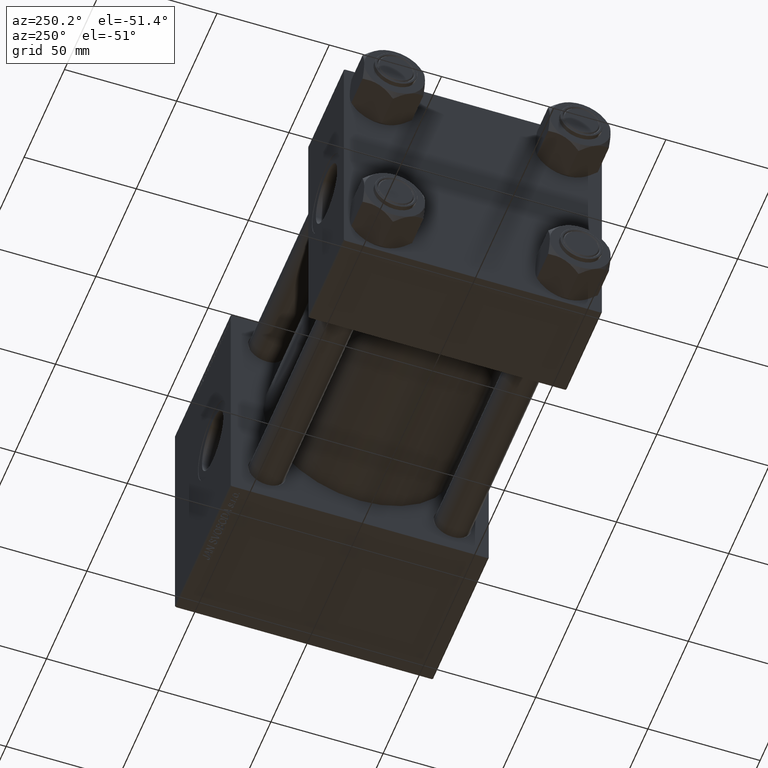
[diagram: clean part render]
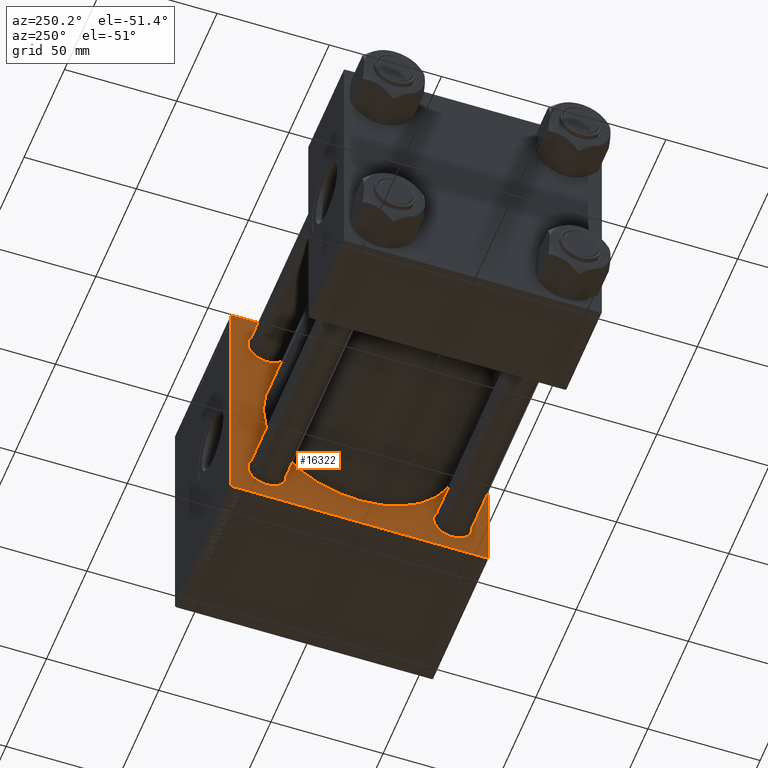
[diagram: same view with one face highlighted and labeled with its STEP entity id]
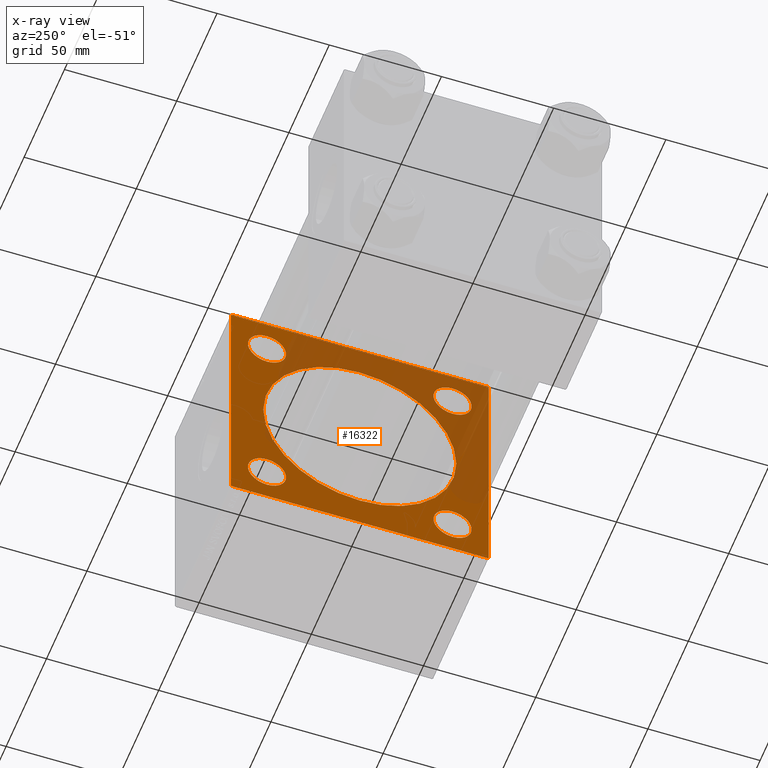
[diagram: x-ray of the same camera — body ghosted, the highlighted face saturated]
A machine part, auxiliary view. The second image highlights one B-rep face of the part: STEP entity #16322.
The next image is the same camera in x-ray: the body ghosted, the highlighted face saturated — about 40% of this face is hidden behind the body in this view.
In plain terms, the highlighted planar face has unit normal (-1, 0, 0).
Its self-contained STEP definition (entity closure, byte-faithful):
#446 = VERTEX_POINT ( 'NONE', #40073 ) ;
#920 = EDGE_LOOP ( 'NONE', ( #50719, #47070 ) ) ;
#1426 = LINE ( 'NONE', #8331, #13211 ) ;
#1679 = EDGE_CURVE ( 'NONE', #28467, #36475, #13775, .T. ) ;
#1708 = CIRCLE ( 'NONE', #30984, 8.500000000000007105 ) ;
#2763 = CARTESIAN_POINT ( 'NONE',  ( 140.0000000000000000, -57.49999999999999289, 57.00000000000004974 ) ) ;
#3466 = DIRECTION ( 'NONE',  ( 0.000000000000000000, 0.000000000000000000, -1.000000000000000000 ) ) ;
#3845 = CARTESIAN_POINT ( 'NONE',  ( 140.0000000000000000, -41.34999999999998721, 41.35000000000000853 ) ) ;
#3854 = CARTESIAN_POINT ( 'NONE',  ( 140.0000000000000000, -41.34999999999998721, 49.85000000000002274 ) ) ;
#3883 = CARTESIAN_POINT ( 'NONE',  ( 140.0000000000000000, 57.50000000000000000, 57.50000000000000711 ) ) ;
#4055 = DIRECTION ( 'NONE',  ( 0.000000000000000000, 0.000000000000000000, 1.000000000000000000 ) ) ;
#4323 = FACE_BOUND ( 'NONE', #23902, .T. ) ;
#4426 = CARTESIAN_POINT ( 'NONE',  ( 140.0000000000000000, -57.24999999999962341, 57.25000000000041211 ) ) ;
#5382 = CIRCLE ( 'NONE', #33002, 8.500000000000007105 ) ;
#6842 = EDGE_CURVE ( 'NONE', #41385, #12287, #40839, .T. ) ;
#6920 = AXIS2_PLACEMENT_3D ( 'NONE', #24215, #11902, #4055 ) ;
#6994 = EDGE_CURVE ( 'NONE', #47086, #31577, #1426, .T. ) ;
#7458 = PLANE ( 'NONE',  #22635 ) ;
#7527 = DIRECTION ( 'NONE',  ( 0.000000000000000000, 0.000000000000000000, 1.000000000000000000 ) ) ;
#7787 = DIRECTION ( 'NONE',  ( 0.000000000000000000, 0.7071067811865279218, -0.7071067811865671127 ) ) ;
#8328 = EDGE_CURVE ( 'NONE', #9391, #49280, #50914, .T. ) ;
#8331 = CARTESIAN_POINT ( 'NONE',  ( 140.0000000000000000, -57.25000000000117950, -57.24999999999879918 ) ) ;
#8431 = ORIENTED_EDGE ( 'NONE', *, *, #6994, .T. ) ;
#8612 = VERTEX_POINT ( 'NONE', #2763 ) ;
#8736 = ORIENTED_EDGE ( 'NONE', *, *, #14908, .T. ) ;
#9093 = DIRECTION ( 'NONE',  ( 1.000000000000000000, -0.000000000000000000, 0.000000000000000000 ) ) ;
#9208 = VECTOR ( 'NONE', #40292, 1000.000000000000000 ) ;
#9391 = VERTEX_POINT ( 'NONE', #15188 ) ;
#9893 = DIRECTION ( 'NONE',  ( 1.000000000000000000, -0.000000000000000000, 0.000000000000000000 ) ) ;
#10356 = CARTESIAN_POINT ( 'NONE',  ( 140.0000000000000000, 41.34999999999999432, 41.35000000000000142 ) ) ;
#10823 = EDGE_CURVE ( 'NONE', #34819, #446, #47723, .T. ) ;
#10887 = EDGE_CURVE ( 'NONE', #13438, #16673, #23533, .T. ) ;
#11178 = CARTESIAN_POINT ( 'NONE',  ( 140.0000000000000000, -57.00000000000004263, 57.49999999999999289 ) ) ;
#11902 = DIRECTION ( 'NONE',  ( 1.000000000000000000, -0.000000000000000000, 0.000000000000000000 ) ) ;
#12145 = FACE_BOUND ( 'NONE', #18676, .T. ) ;
#12213 = ORIENTED_EDGE ( 'NONE', *, *, #1679, .T. ) ;
#12287 = VERTEX_POINT ( 'NONE', #3854 ) ;
#12381 = CARTESIAN_POINT ( 'NONE',  ( 140.0000000000000000, -2.602085213965210642E-15, 0.000000000000000000 ) ) ;
#12824 = ORIENTED_EDGE ( 'NONE', *, *, #10823, .T. ) ;
#12892 = DIRECTION ( 'NONE',  ( 1.000000000000000000, 0.000000000000000000, 0.000000000000000000 ) ) ;
#13211 = VECTOR ( 'NONE', #33366, 1000.000000000000000 ) ;
#13438 = VERTEX_POINT ( 'NONE', #33723 ) ;
#13527 = DIRECTION ( 'NONE',  ( -0.000000000000000000, -0.7071067811865671127, -0.7071067811865279218 ) ) ;
#13775 = LINE ( 'NONE', #49675, #23215 ) ;
#13976 = VERTEX_POINT ( 'NONE', #20455 ) ;
#14042 = DIRECTION ( 'NONE',  ( 0.000000000000000000, 0.000000000000000000, 1.000000000000000000 ) ) ;
#14887 = AXIS2_PLACEMENT_3D ( 'NONE', #19587, #25507, #41225 ) ;
#14908 = EDGE_CURVE ( 'NONE', #8612, #16673, #24324, .T. ) ;
#15034 = EDGE_CURVE ( 'NONE', #446, #34819, #45185, .T. ) ;
#15109 = LINE ( 'NONE', #27420, #43500 ) ;
#15188 = CARTESIAN_POINT ( 'NONE',  ( 140.0000000000000000, 2.663896022368408223E-15, -43.00000000000000000 ) ) ;
#15400 = CARTESIAN_POINT ( 'NONE',  ( 140.0000000000000000, -57.49999999999999289, -56.99999999999997868 ) ) ;
#16322 = ADVANCED_FACE ( 'NONE', ( #51723, #36483, #35728, #12145, #4323, #43336 ), #7458, .T. ) ;
#16673 = VERTEX_POINT ( 'NONE', #11178 ) ;
#17551 = CIRCLE ( 'NONE', #39303, 8.500000000000007105 ) ;
#18231 = ORIENTED_EDGE ( 'NONE', *, *, #35635, .T. ) ;
#18404 = CARTESIAN_POINT ( 'NONE',  ( 140.0000000000000000, 57.50000000000000000, 57.00000000000000711 ) ) ;
#18569 = CARTESIAN_POINT ( 'NONE',  ( 140.0000000000000000, -2.602085213965210642E-15, 43.00000000000000000 ) ) ;
#18676 = EDGE_LOOP ( 'NONE', ( #12824, #42369 ) ) ;
#19587 = CARTESIAN_POINT ( 'NONE',  ( 140.0000000000000000, -41.34999999999998721, 41.35000000000000853 ) ) ;
#19773 = EDGE_CURVE ( 'NONE', #21015, #44052, #21961, .T. ) ;
#20267 = DIRECTION ( 'NONE',  ( -1.000000000000000000, 0.000000000000000000, -0.000000000000000000 ) ) ;
#20455 = CARTESIAN_POINT ( 'NONE',  ( 140.0000000000000000, 41.34999999999999432, 32.84999999999999432 ) ) ;
#20662 = CARTESIAN_POINT ( 'NONE',  ( 140.0000000000000000, 41.34999999999999432, -32.84999999999999432 ) ) ;
#20748 = DIRECTION ( 'NONE',  ( 0.000000000000000000, 0.000000000000000000, -1.000000000000000000 ) ) ;
#21015 = VERTEX_POINT ( 'NONE', #20662 ) ;
#21356 = CIRCLE ( 'NONE', #37244, 8.500000000000007105 ) ;
#21482 = EDGE_LOOP ( 'NONE', ( #33979, #8431, #37051, #8736, #27177, #36625, #18231, #12213 ) ) ;
#21961 = CIRCLE ( 'NONE', #6920, 8.500000000000007105 ) ;
#22635 = AXIS2_PLACEMENT_3D ( 'NONE', #23437, #20267, #39917 ) ;
#23215 = VECTOR ( 'NONE', #13527, 1000.000000000000000 ) ;
#23437 = CARTESIAN_POINT ( 'NONE',  ( 140.0000000000000000, 0.000000000000000000, 0.000000000000000000 ) ) ;
#23533 = LINE ( 'NONE', #3883, #49344 ) ;
#23902 = EDGE_LOOP ( 'NONE', ( #27912, #26352 ) ) ;
#24018 = CARTESIAN_POINT ( 'NONE',  ( 140.0000000000000000, 41.34999999999999432, 41.35000000000000142 ) ) ;
#24215 = CARTESIAN_POINT ( 'NONE',  ( 140.0000000000000000, 41.34999999999999432, -41.35000000000000142 ) ) ;
#24324 = LINE ( 'NONE', #4426, #9208 ) ;
#24359 = EDGE_CURVE ( 'NONE', #33178, #13976, #5382, .T. ) ;
#24919 = VECTOR ( 'NONE', #48909, 1000.000000000000000 ) ;
#25507 = DIRECTION ( 'NONE',  ( 1.000000000000000000, -0.000000000000000000, 0.000000000000000000 ) ) ;
#25739 = VECTOR ( 'NONE', #39638, 1000.000000000000000 ) ;
#25878 = DIRECTION ( 'NONE',  ( 0.000000000000000000, 0.000000000000000000, 1.000000000000000000 ) ) ;
#26352 = ORIENTED_EDGE ( 'NONE', *, *, #8328, .T. ) ;
#26378 = CARTESIAN_POINT ( 'NONE',  ( 140.0000000000000000, -2.602085213965210642E-15, 0.000000000000000000 ) ) ;
#27160 = DIRECTION ( 'NONE',  ( 1.000000000000000000, 0.000000000000000000, 0.000000000000000000 ) ) ;
#27177 = ORIENTED_EDGE ( 'NONE', *, *, #10887, .F. ) ;
#27420 = CARTESIAN_POINT ( 'NONE',  ( 140.0000000000000000, 57.25000000000159872, 57.24999999999842970 ) ) ;
#27445 = DIRECTION ( 'NONE',  ( 0.000000000000000000, -1.000000000000000000, -1.206764157201257291E-16 ) ) ;
#27912 = ORIENTED_EDGE ( 'NONE', *, *, #32855, .T. ) ;
#28307 = CARTESIAN_POINT ( 'NONE',  ( 140.0000000000000000, 41.34999999999999432, 49.85000000000001563 ) ) ;
#28467 = VERTEX_POINT ( 'NONE', #33916 ) ;
#29800 = AXIS2_PLACEMENT_3D ( 'NONE', #12381, #12892, #20748 ) ;
#30415 = EDGE_CURVE ( 'NONE', #44052, #21015, #21356, .T. ) ;
#30984 = AXIS2_PLACEMENT_3D ( 'NONE', #3845, #36040, #35521 ) ;
#31342 = VERTEX_POINT ( 'NONE', #18404 ) ;
#31530 = LINE ( 'NONE', #51699, #25739 ) ;
#31577 = VERTEX_POINT ( 'NONE', #15400 ) ;
#31772 = EDGE_LOOP ( 'NONE', ( #46763, #31918 ) ) ;
#31918 = ORIENTED_EDGE ( 'NONE', *, *, #30415, .T. ) ;
#32336 = CARTESIAN_POINT ( 'NONE',  ( 140.0000000000000000, 41.34999999999999432, -41.35000000000000142 ) ) ;
#32855 = EDGE_CURVE ( 'NONE', #49280, #9391, #42375, .T. ) ;
#33002 = AXIS2_PLACEMENT_3D ( 'NONE', #10356, #38378, #49666 ) ;
#33178 = VERTEX_POINT ( 'NONE', #28307 ) ;
#33366 = DIRECTION ( 'NONE',  ( 0.000000000000000000, -0.7071067811865328068, 0.7071067811865622277 ) ) ;
#33701 = CARTESIAN_POINT ( 'NONE',  ( 140.0000000000000000, -41.34999999999998721, -41.35000000000000853 ) ) ;
#33723 = CARTESIAN_POINT ( 'NONE',  ( 140.0000000000000000, 57.00000000000002842, 57.50000000000000711 ) ) ;
#33916 = CARTESIAN_POINT ( 'NONE',  ( 140.0000000000000000, 57.50000000000000000, -56.99999999999999289 ) ) ;
#33979 = ORIENTED_EDGE ( 'NONE', *, *, #36155, .T. ) ;
#34213 = ORIENTED_EDGE ( 'NONE', *, *, #41622, .T. ) ;
#34819 = VERTEX_POINT ( 'NONE', #42317 ) ;
#35521 = DIRECTION ( 'NONE',  ( 0.000000000000000000, 0.000000000000000000, 1.000000000000000000 ) ) ;
#35635 = EDGE_CURVE ( 'NONE', #31342, #28467, #49928, .T. ) ;
#35728 = FACE_BOUND ( 'NONE', #31772, .T. ) ;
#36040 = DIRECTION ( 'NONE',  ( 1.000000000000000000, -0.000000000000000000, 0.000000000000000000 ) ) ;
#36155 = EDGE_CURVE ( 'NONE', #36475, #47086, #31530, .T. ) ;
#36475 = VERTEX_POINT ( 'NONE', #50978 ) ;
#36483 = FACE_BOUND ( 'NONE', #920, .T. ) ;
#36625 = ORIENTED_EDGE ( 'NONE', *, *, #50702, .T. ) ;
#37051 = ORIENTED_EDGE ( 'NONE', *, *, #45787, .F. ) ;
#37244 = AXIS2_PLACEMENT_3D ( 'NONE', #32336, #39933, #44117 ) ;
#37880 = CARTESIAN_POINT ( 'NONE',  ( 140.0000000000000000, -41.34999999999998721, 32.85000000000000142 ) ) ;
#38378 = DIRECTION ( 'NONE',  ( 1.000000000000000000, -0.000000000000000000, 0.000000000000000000 ) ) ;
#39303 = AXIS2_PLACEMENT_3D ( 'NONE', #24018, #50015, #7527 ) ;
#39638 = DIRECTION ( 'NONE',  ( 0.000000000000000000, -1.000000000000000000, -1.206764157201257291E-16 ) ) ;
#39917 = DIRECTION ( 'NONE',  ( -0.000000000000000000, 0.000000000000000000, 1.000000000000000000 ) ) ;
#39933 = DIRECTION ( 'NONE',  ( 1.000000000000000000, -0.000000000000000000, 0.000000000000000000 ) ) ;
#40073 = CARTESIAN_POINT ( 'NONE',  ( 140.0000000000000000, -41.34999999999998721, -49.85000000000002274 ) ) ;
#40292 = DIRECTION ( 'NONE',  ( -0.000000000000000000, 0.7071067811865524577, 0.7071067811865426878 ) ) ;
#40451 = CARTESIAN_POINT ( 'NONE',  ( 140.0000000000000000, 41.34999999999999432, -49.85000000000001563 ) ) ;
#40839 = CIRCLE ( 'NONE', #14887, 8.500000000000007105 ) ;
#40912 = CARTESIAN_POINT ( 'NONE',  ( 140.0000000000000000, -57.00000000000001421, -57.49999999999997868 ) ) ;
#41225 = DIRECTION ( 'NONE',  ( 0.000000000000000000, 0.000000000000000000, 1.000000000000000000 ) ) ;
#41385 = VERTEX_POINT ( 'NONE', #37880 ) ;
#41622 = EDGE_CURVE ( 'NONE', #12287, #41385, #1708, .T. ) ;
#42317 = CARTESIAN_POINT ( 'NONE',  ( 140.0000000000000000, -41.34999999999998721, -32.85000000000000142 ) ) ;
#42369 = ORIENTED_EDGE ( 'NONE', *, *, #15034, .T. ) ;
#42375 = CIRCLE ( 'NONE', #29800, 43.00000000000000000 ) ;
#42521 = AXIS2_PLACEMENT_3D ( 'NONE', #26378, #27160, #46550 ) ;
#43256 = CARTESIAN_POINT ( 'NONE',  ( 140.0000000000000000, -57.49999999999999289, 57.49999999999999289 ) ) ;
#43336 = FACE_OUTER_BOUND ( 'NONE', #21482, .T. ) ;
#43500 = VECTOR ( 'NONE', #7787, 1000.000000000000000 ) ;
#44052 = VERTEX_POINT ( 'NONE', #40451 ) ;
#44117 = DIRECTION ( 'NONE',  ( 0.000000000000000000, 0.000000000000000000, 1.000000000000000000 ) ) ;
#44374 = VECTOR ( 'NONE', #3466, 1000.000000000000000 ) ;
#44379 = AXIS2_PLACEMENT_3D ( 'NONE', #33701, #9093, #14042 ) ;
#45185 = CIRCLE ( 'NONE', #44379, 8.500000000000007105 ) ;
#45526 = CARTESIAN_POINT ( 'NONE',  ( 140.0000000000000000, -41.34999999999998721, -41.35000000000000853 ) ) ;
#45787 = EDGE_CURVE ( 'NONE', #8612, #31577, #46938, .T. ) ;
#46235 = ORIENTED_EDGE ( 'NONE', *, *, #6842, .T. ) ;
#46550 = DIRECTION ( 'NONE',  ( 0.000000000000000000, 0.000000000000000000, -1.000000000000000000 ) ) ;
#46763 = ORIENTED_EDGE ( 'NONE', *, *, #19773, .T. ) ;
#46938 = LINE ( 'NONE', #43256, #44374 ) ;
#47070 = ORIENTED_EDGE ( 'NONE', *, *, #50802, .T. ) ;
#47086 = VERTEX_POINT ( 'NONE', #40912 ) ;
#47723 = CIRCLE ( 'NONE', #50204, 8.500000000000007105 ) ;
#48329 = EDGE_LOOP ( 'NONE', ( #34213, #46235 ) ) ;
#48909 = DIRECTION ( 'NONE',  ( 0.000000000000000000, 0.000000000000000000, -1.000000000000000000 ) ) ;
#49167 = CARTESIAN_POINT ( 'NONE',  ( 140.0000000000000000, 57.50000000000000000, 57.50000000000000711 ) ) ;
#49280 = VERTEX_POINT ( 'NONE', #18569 ) ;
#49344 = VECTOR ( 'NONE', #27445, 1000.000000000000000 ) ;
#49666 = DIRECTION ( 'NONE',  ( 0.000000000000000000, 0.000000000000000000, 1.000000000000000000 ) ) ;
#49675 = CARTESIAN_POINT ( 'NONE',  ( 140.0000000000000000, 57.24999999999840838, -57.25000000000157740 ) ) ;
#49928 = LINE ( 'NONE', #49167, #24919 ) ;
#50015 = DIRECTION ( 'NONE',  ( 1.000000000000000000, -0.000000000000000000, 0.000000000000000000 ) ) ;
#50204 = AXIS2_PLACEMENT_3D ( 'NONE', #45526, #9893, #25878 ) ;
#50702 = EDGE_CURVE ( 'NONE', #13438, #31342, #15109, .T. ) ;
#50719 = ORIENTED_EDGE ( 'NONE', *, *, #24359, .T. ) ;
#50802 = EDGE_CURVE ( 'NONE', #13976, #33178, #17551, .T. ) ;
#50914 = CIRCLE ( 'NONE', #42521, 43.00000000000000000 ) ;
#50978 = CARTESIAN_POINT ( 'NONE',  ( 140.0000000000000000, 57.00000000000000000, -57.49999999999996447 ) ) ;
#51699 = CARTESIAN_POINT ( 'NONE',  ( 140.0000000000000000, 57.50000000000000000, -57.49999999999996447 ) ) ;
#51723 = FACE_BOUND ( 'NONE', #48329, .T. ) ;